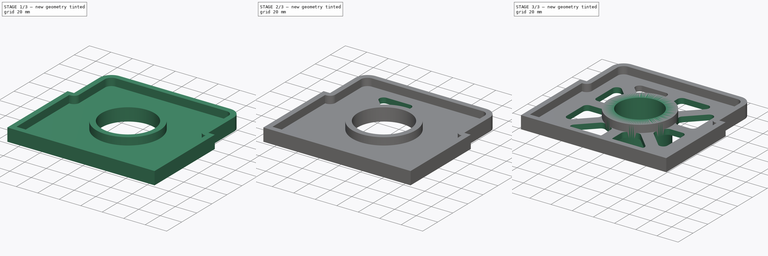
[diagram: build sequence overview — one tinted view per stage of 3, left to right]
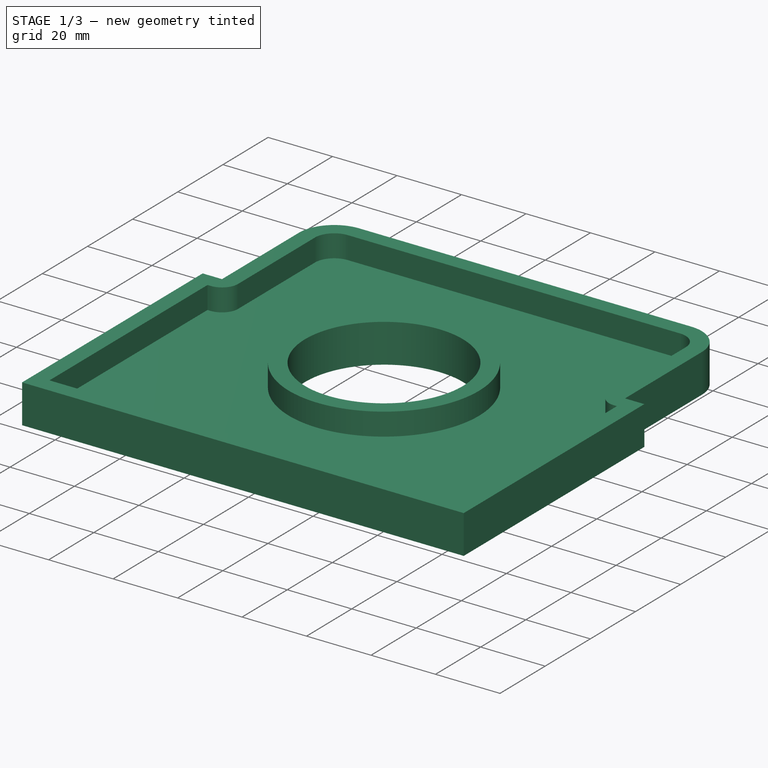
[diagram: stage 1 of 3 — iso view after this stage's code; geometry added in this stage tinted green]
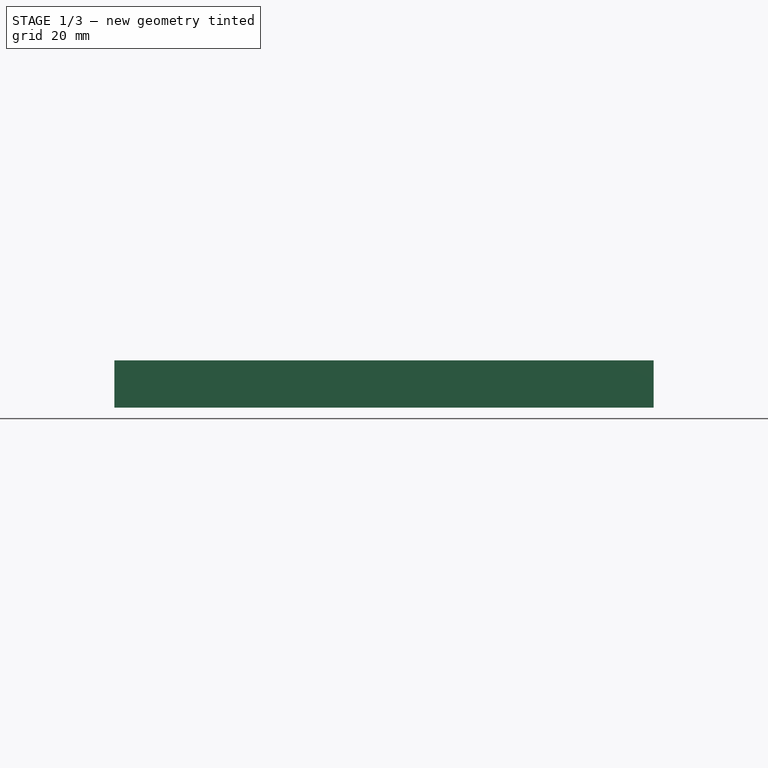
[diagram: stage 1 of 3 — front view after this stage's code; geometry added in this stage tinted green]
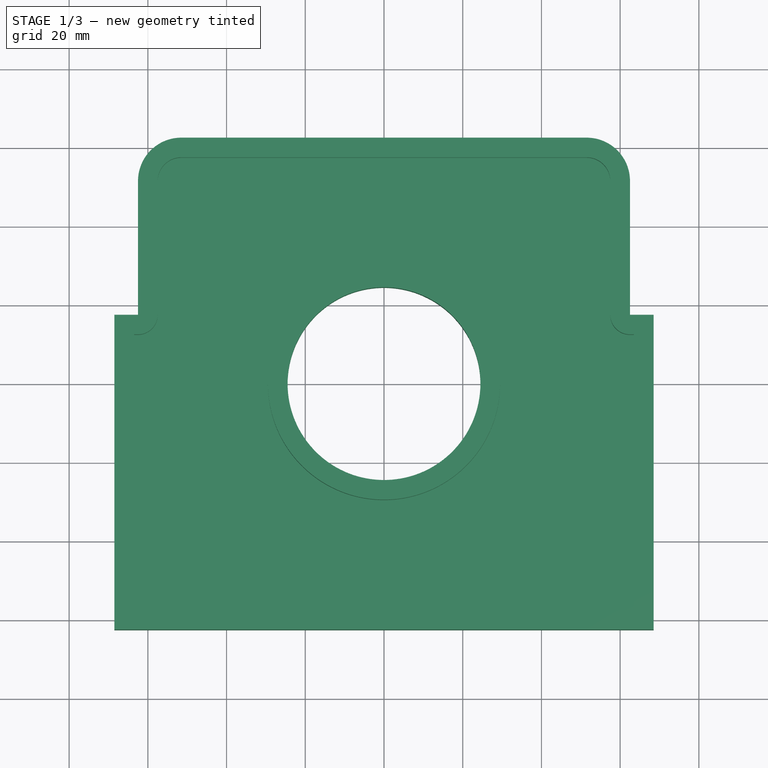
[diagram: stage 1 of 3 — top view after this stage's code; geometry added in this stage tinted green]
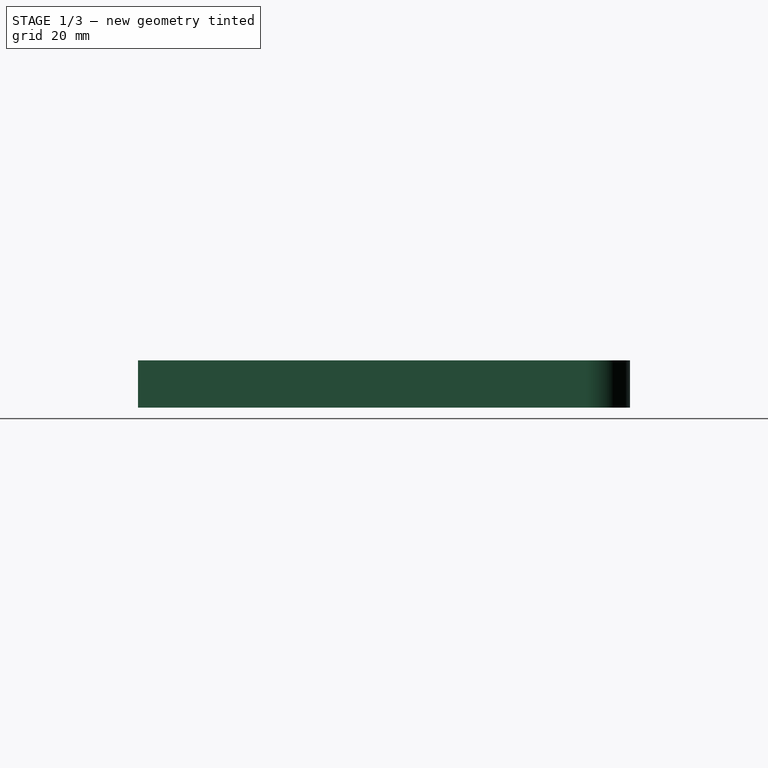
[diagram: stage 1 of 3 — right view after this stage's code; geometry added in this stage tinted green]
FCSTD DOCUMENT  (FreeCAD 1.1R41905 (Git))
Label: 24-SPO-52-SPOOL_END
License: Creative Commons Attribution-NonCommercial-ShareAlike 4.0
LicenseURL: https://creativecommons.org/licenses/by-nc-sa/4.0/
objects: Sketcher::SketchObject×3, App::Point×1, PartDesign::Pad×1, PartDesign::Thickness×1, PartDesign::Pocket×1, Part::DatumPlane×1, PartDesign::Mirrored×1, PartDesign::PolarPattern×1, PartDesign::MultiTransform×1, PartDesign::Revolution×1, PartDesign::Body×1
note: 25 computed .brp shape members not serialized (recipe doc carries the construction recipe); baked Part::Feature solids carry a one-line shape summary decoded from their .brp

FEATURE [App::Point] Origin001  label="Origine"
  Role = Origin
FEATURE [Sketcher::SketchObject] Sketch
  ArcFitTolerance = 1e-06
  AttachmentSupport = -> [Origin]
  ExternalTypes = [0]
  FullyConstrained = true
  MakeInternals = false
  MapMode = 5
  sketch-geometry (11):
    g0: LineSegment StartX=-68.5 StartY=17.5 StartZ=0 EndX=-68.5 EndY=-62.5 EndZ=0
    g1: LineSegment StartX=-68.5 StartY=-62.5 StartZ=0 EndX=68.5 EndY=-62.5 EndZ=0
    g2: LineSegment StartX=68.5 StartY=-62.5 StartZ=0 EndX=68.5 EndY=17.5 EndZ=0
    g3: LineSegment StartX=68.5 StartY=17.5 StartZ=0 EndX=62.5 EndY=17.5 EndZ=0
    g4: LineSegment StartX=62.5 StartY=17.5 StartZ=0 EndX=62.5 EndY=51.5 EndZ=0
    g5: ArcOfCircle CenterX=51.5 CenterY=51.5 CenterZ=0 NormalX=0 NormalY=0 NormalZ=1 AngleXU=0 Radius=11 StartAngle=3e-16 EndAngle=1.5708
    g6: LineSegment StartX=51.5 StartY=62.5 StartZ=0 EndX=-51.5 EndY=62.5 EndZ=0
    g7: ArcOfCircle CenterX=-51.5 CenterY=51.5 CenterZ=0 NormalX=0 NormalY=0 NormalZ=1 AngleXU=0 Radius=11 StartAngle=1.5708 EndAngle=3.14159
    g8: LineSegment StartX=-62.5 StartY=51.5 StartZ=0 EndX=-62.5 EndY=17.5 EndZ=0
    g9: LineSegment StartX=-62.5 StartY=17.5 StartZ=0 EndX=-68.5 EndY=17.5 EndZ=0
    g10: Circle CenterX=0 CenterY=0 CenterZ=0 NormalX=0 NormalY=0 NormalZ=1 AngleXU=0 Radius=24.5
  constraints (28):
    c: Vertical(g0)
    c: Coincident(g0,g1)
    c: Coincident(g1,g2)
    c: Vertical(g2)
    c: Coincident(g2,g3)
    c: Horizontal(g3)
    c: Coincident(g3,g4)
    c: Vertical(g4)
    c: Tangent(g4,g5) = -1.5708
    c: Horizontal(g6)
    c: Tangent(g6,g7) = -1.5708
    c: Vertical(g8)
    c: Coincident(g8,g9)
    c: Coincident(g9,g0)
    c: Horizontal(g9)
    c: Symmetric(g0,g1,g-2)
    c: Symmetric(g8,g3,g-2)
    c: Tangent(g7,g8) = -1.5708
    c: Tangent(g5,g6) = -1.5708
    c: Equal(g7,g5)
    c: DistanceX(g1,g1) = 137
    c: DistanceY(g0,g0) = 80
    c: Distance(g6,g1) = 125
    c: Radius(g7) = 11
    c: Distance(g9,g9) = 6
    c: Distance(g-1,g1) = 62.5
    c: Diameter(g10) = 49
    c: Coincident(g10,g-1)
FEATURE [PartDesign::Pad] Pad
  Direction = (0,0,1)
  Length = 12
  Length2 = 10
  Profile = -> Sketch
  ReferenceAxis = -> Sketch [N_Axis]
  Refine = true
  Suppressed = false
  Type = 0
FEATURE [PartDesign::Thickness] Thickness
  Base = -> Pad [Face13]
  BaseFeature = -> Pad
  Intersection = false
  Join = 0
  Mode = 0
  Refine = true
  Reversed = true
  SupportTransform = false
  Suppressed = false
  Value = 5
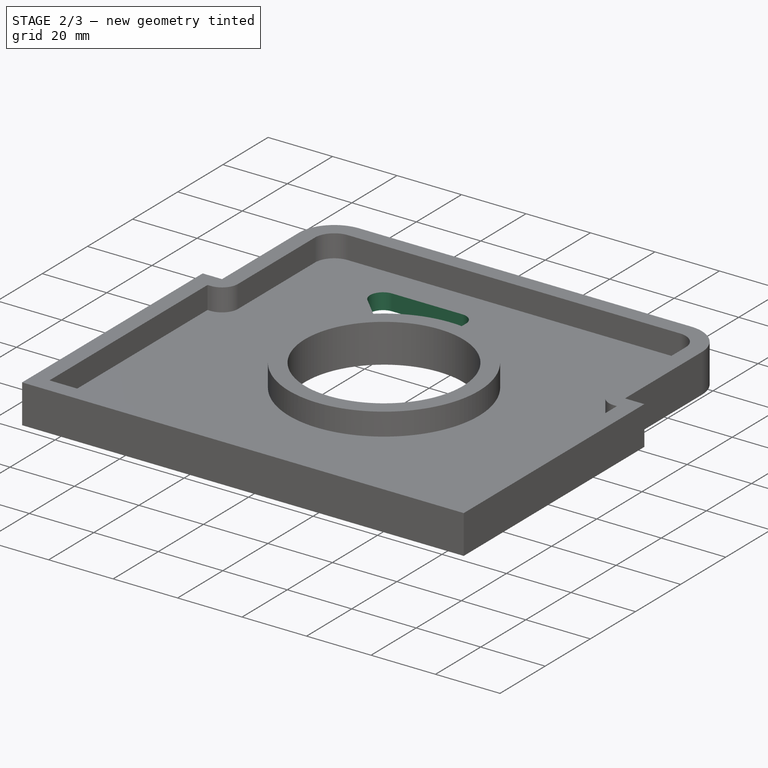
[diagram: stage 2 of 3 — iso view after this stage's code; geometry added in this stage tinted green]
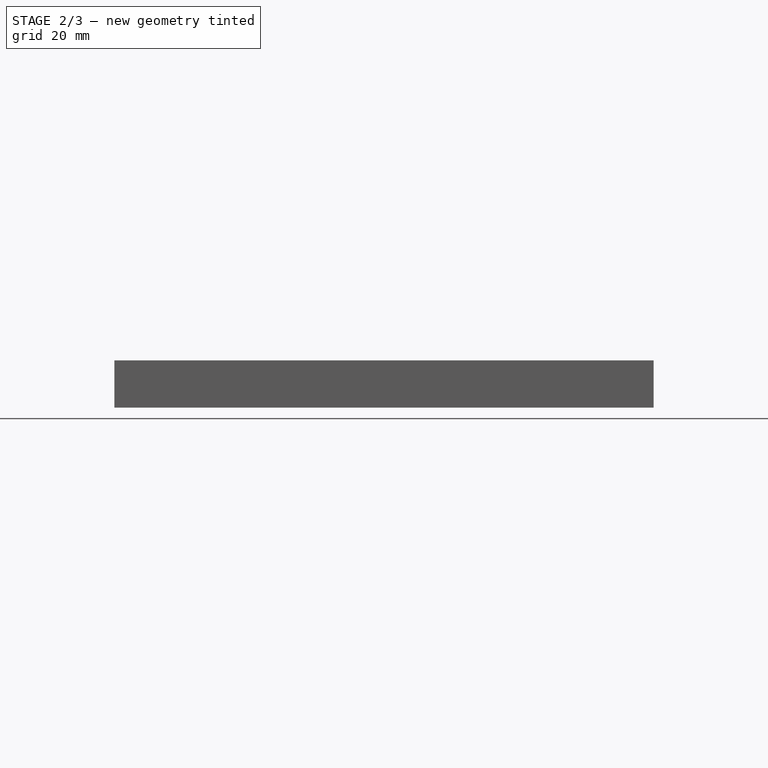
[diagram: stage 2 of 3 — front view after this stage's code; geometry added in this stage tinted green]
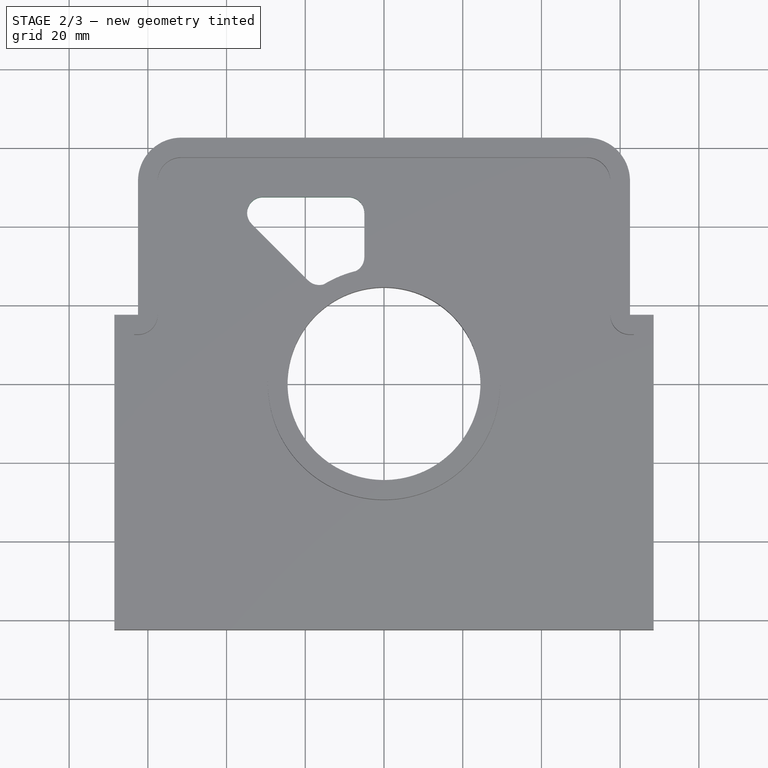
[diagram: stage 2 of 3 — top view after this stage's code; geometry added in this stage tinted green]
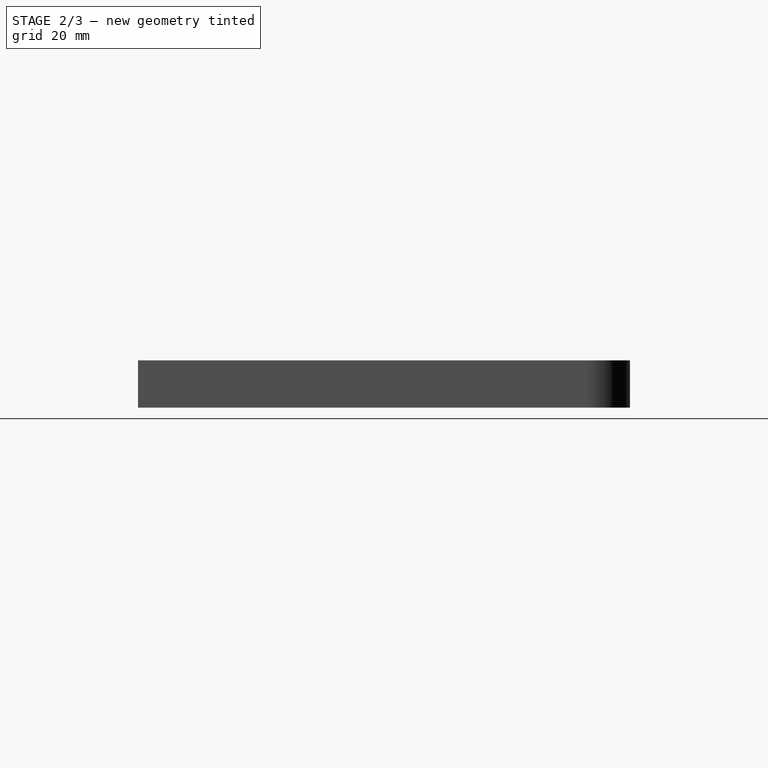
[diagram: stage 2 of 3 — right view after this stage's code; geometry added in this stage tinted green]
FEATURE [Sketcher::SketchObject] Sketch001
  ArcFitTolerance = 1e-06
  AttachmentSupport = -> [Thickness]
  ExternalGeometry = -> [Thickness]
  ExternalTypes = [0,0,0]
  FullyConstrained = true
  MakeInternals = false
  MapMode = 5
  Placement = pos=(0,0,5) rot=(0,0,1;0rad)
  expr: Constraints[19] = 59 / 2
  sketch-geometry (9):
    g0: LineSegment StartX=-51.5 StartY=51.5 StartZ=0 EndX=0 EndY=0 EndZ=0
    g1: LineSegment StartX=-30.7721 StartY=47.5 StartZ=0 EndX=-9 EndY=47.5 EndZ=0
    g2: ArcOfCircle CenterX=-9 CenterY=43.5 CenterZ=0 NormalX=0 NormalY=0 NormalZ=1 AngleXU=0 Radius=4 StartAngle=0 EndAngle=1.5708
    g3: LineSegment StartX=-5 StartY=43.5 StartZ=0 EndX=-5 EndY=32.2684 EndZ=0
    g4: ArcOfCircle CenterX=-9 CenterY=32.2684 CenterZ=0 NormalX=0 NormalY=0 NormalZ=1 AngleXU=0 Radius=4 StartAngle=4.98439 EndAngle=6.28319
    g5: ArcOfCircle CenterX=0 CenterY=0 CenterZ=0 NormalX=0 NormalY=0 NormalZ=1 AngleXU=0 Radius=29.5 StartAngle=1.84279 EndAngle=2.0842
    g6: ArcOfCircle CenterX=-16.4532 CenterY=29.1812 CenterZ=0 NormalX=0 NormalY=0 NormalZ=1 AngleXU=0 Radius=4 StartAngle=3.92699 EndAngle=5.22579
    g7: LineSegment StartX=-19.2817 StartY=26.3527 StartZ=0 EndX=-33.6005 EndY=40.6716 EndZ=0
    g8: ArcOfCircle CenterX=-30.7721 CenterY=43.5 CenterZ=0 NormalX=0 NormalY=0 NormalZ=1 AngleXU=0 Radius=4 StartAngle=1.5708 EndAngle=3.92699
  constraints (22):
    c: Coincident(g0,g-3)
    c: Coincident(g0,g-1)
    c: Horizontal(g1)
    c: Tangent(g1,g2) = 1.5708
    c: Tangent(g2,g3) = 1.5708
    c: Tangent(g3,g4) = 1.5708
    c: Tangent(g4,g5) = 1.5708
    c: Tangent(g5,g6) = 1.5708
    c: Tangent(g7,g8) = 1.5708
    c: DistanceY(g1,g-3) = 10
    c: Tangent(g8,g1) = 1.5708
    c: Vertical(g3)
    c: Tangent(g6,g7) = 1.5708
    c: Parallel(g7,g0)
    c: Distance(g7,g0) = 5
    c: Coincident(g5,g0)
    c: Equal(g2,g4)
    c: Radius(g2) = 4
    c: Distance(g2,g-2) = 5
    c: Radius(g5) = 29.5
    c: Equal(g8,g2)
    c: Equal(g6,g4)
FEATURE [PartDesign::Pocket] Pocket
  BaseFeature = -> Thickness
  Direction = (0,0,-1)
  Length = 5
  Length2 = 5
  Profile = -> Sketch001 [Edge2,Edge9,Edge8,Edge7,Edge6,Edge5,Edge4,Edge3]
  ReferenceAxis = -> Sketch001 [N_Axis]
  Refine = true
  Suppressed = false
  Type = 2
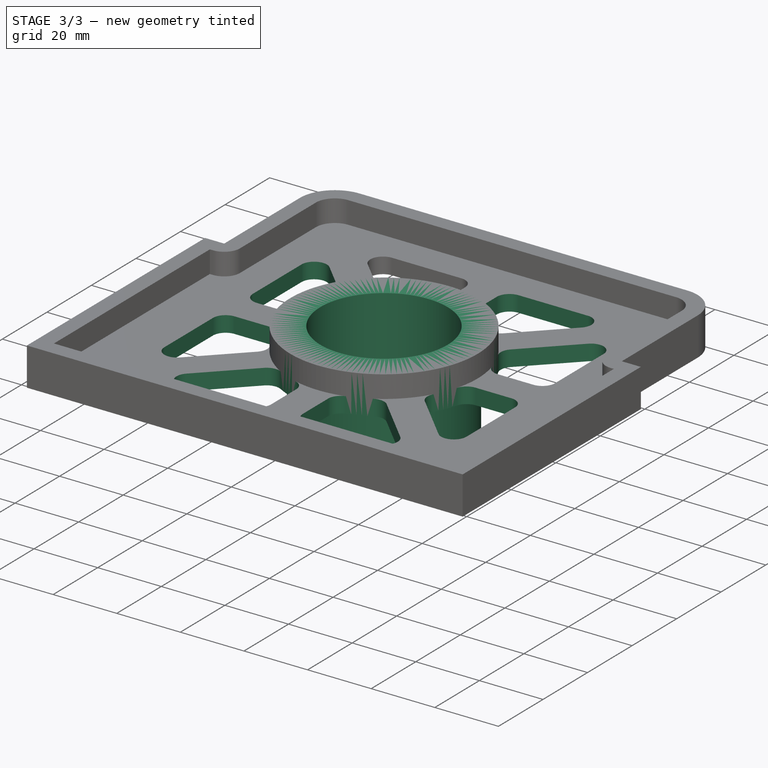
[diagram: stage 3 of 3 — iso view after this stage's code; geometry added in this stage tinted green]
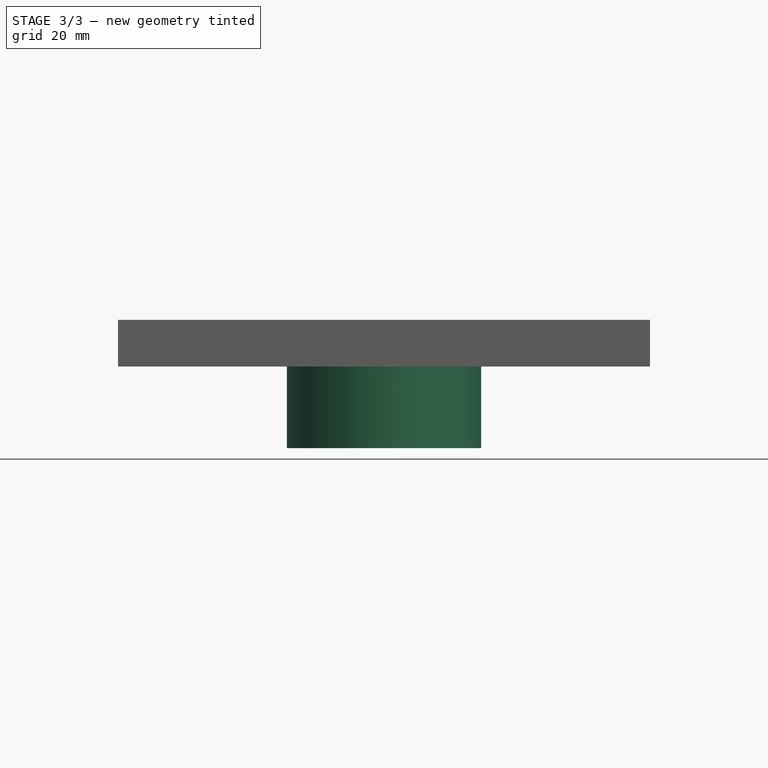
[diagram: stage 3 of 3 — front view after this stage's code; geometry added in this stage tinted green]
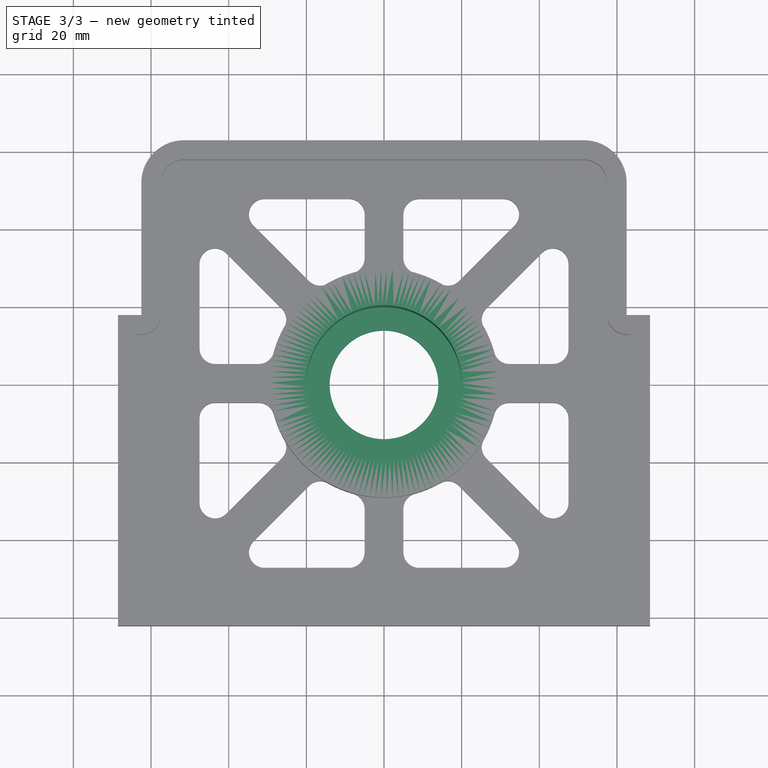
[diagram: stage 3 of 3 — top view after this stage's code; geometry added in this stage tinted green]
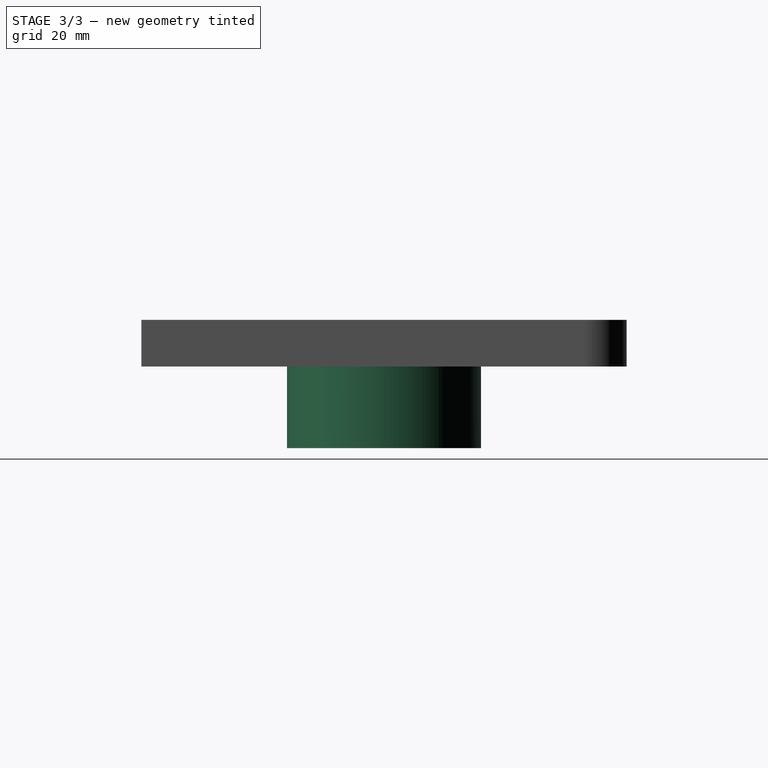
[diagram: stage 3 of 3 — right view after this stage's code; geometry added in this stage tinted green]
FEATURE [Part::DatumPlane] DatumPlane
  AttachmentSupport = -> [Origin,Sketch001]
  MapMode = 13
  Placement = pos=(-17.1667,17.1667,2) rot=(0.862856,-0.357407,-0.357407;1.71777rad)
FEATURE [PartDesign::Mirrored] Mirrored
  MirrorPlane = -> DatumPlane
  Refine = true
  Suppressed = false
  TransformMode = 0
FEATURE [PartDesign::PolarPattern] PolarPattern
  Angle = 360
  Axis = -> Sketch001 [N_Axis]
  Mode = 0
  Occurrences = 4
  Offset = 120
  Refine = true
  Suppressed = false
  TransformMode = 0
FEATURE [PartDesign::MultiTransform] MultiTransform
  BaseFeature = -> Pocket
  Originals = -> [Pocket]
  Refine = true
  Suppressed = false
  TransformMode = 0
  Transformations = -> [Mirrored,PolarPattern]
FEATURE [Sketcher::SketchObject] Sketch002
  ArcFitTolerance = 1e-06
  AttachmentSupport = -> [Origin]
  ExternalGeometry = -> [MultiTransform]
  ExternalTypes = [0]
  FullyConstrained = true
  MakeInternals = false
  MapMode = 5
  Placement = pos=(0,0,0) rot=(1,0,0;1.5708rad)
  expr: Constraints[15] = 28 / 2
  expr: Constraints[16] = 50 / 2
  sketch-geometry (6):
    g0: LineSegment StartX=-20 StartY=12 StartZ=0 EndX=-20 EndY=-16 EndZ=0
    g1: LineSegment StartX=-20 StartY=-16 StartZ=0 EndX=-14 EndY=-16 EndZ=0
    g2: LineSegment StartX=-14 StartY=-16 StartZ=0 EndX=-14 EndY=-21 EndZ=0
    g3: LineSegment StartX=-14 StartY=-21 StartZ=0 EndX=-25 EndY=-21 EndZ=0
    g4: LineSegment StartX=-25 StartY=-21 StartZ=0 EndX=-25 EndY=12 EndZ=0
    g5: LineSegment StartX=-25 StartY=12 StartZ=0 EndX=-20 EndY=12 EndZ=0
  constraints (18):
    c: Vertical(g0)
    c: Coincident(g0,g1)
    c: Horizontal(g1)
    c: Coincident(g1,g2)
    c: Vertical(g2)
    c: Coincident(g2,g3)
    c: Horizontal(g3)
    c: Coincident(g3,g4)
    c: Vertical(g4)
    c: Coincident(g4,g5)
    c: Coincident(g5,g0)
    c: PointOnObject(g0,g-3)
    c: Horizontal(g5)
    c: Equal(g2,g5)
    c: Distance(g5,g5) = 5
    c: Distance(g1,g-2) = 14
    c: Distance(g3,g-2) = 25
    c: DistanceY(g4,g4) = 33
FEATURE [PartDesign::Revolution] Revolution
  Angle = 360
  Angle2 = 60
  Axis = (0,2e-16,1)
  Base = (0,0,0)
  BaseFeature = -> MultiTransform
  Profile = -> Sketch002
  ReferenceAxis = -> Sketch002 [V_Axis]
  Refine = true
  Suppressed = false
  Type = 0
FEATURE [PartDesign::Body] Body  label="Corps"
  AllowCompound = false
  Group = -> [Sketch,Pad,Thickness,Sketch001,Pocket,DatumPlane,MultiTransform,Mirrored,PolarPattern,Sketch002,Revolution]
  Origin = -> Origin
  Tip = -> Revolution
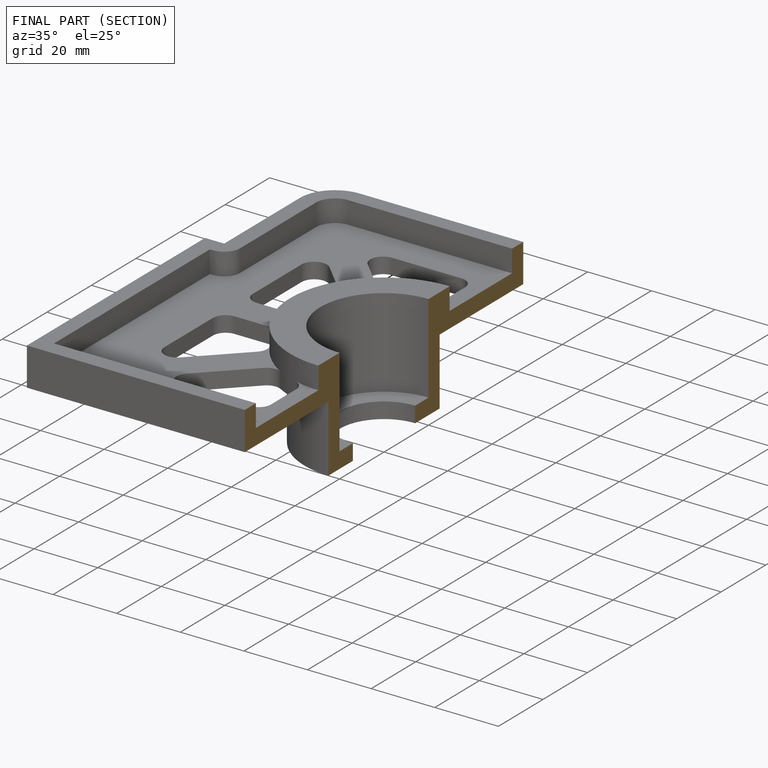
[diagram: finished part — half-section view (interior)]
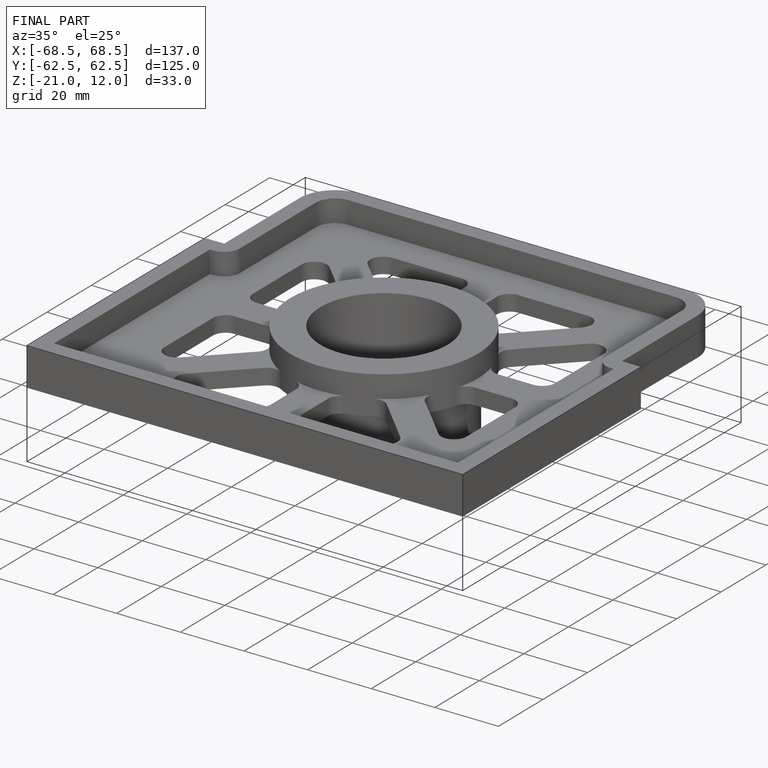
[diagram: finished part — iso view with bounding-box wireframe]
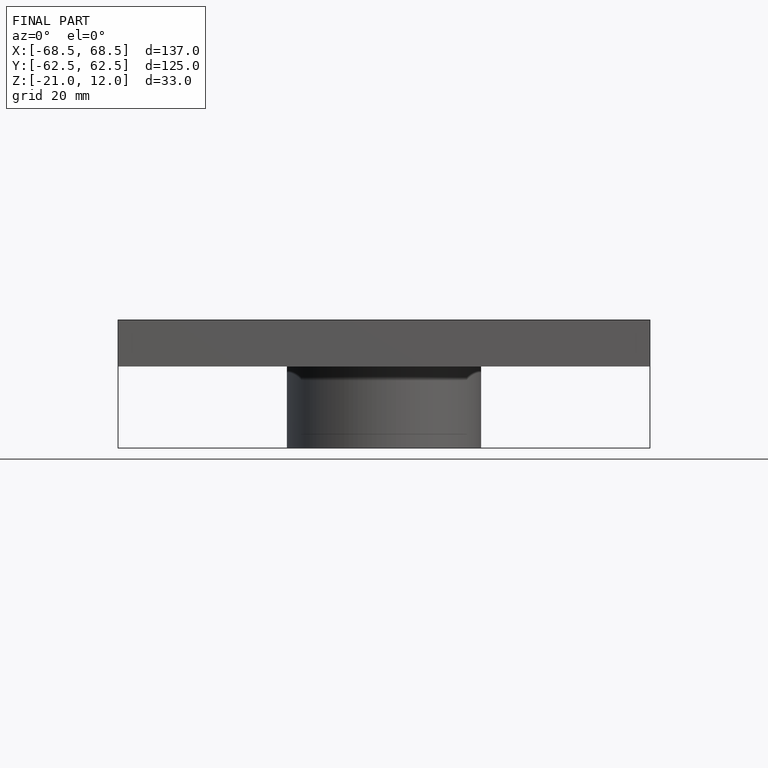
[diagram: finished part — front view with bounding-box wireframe]
